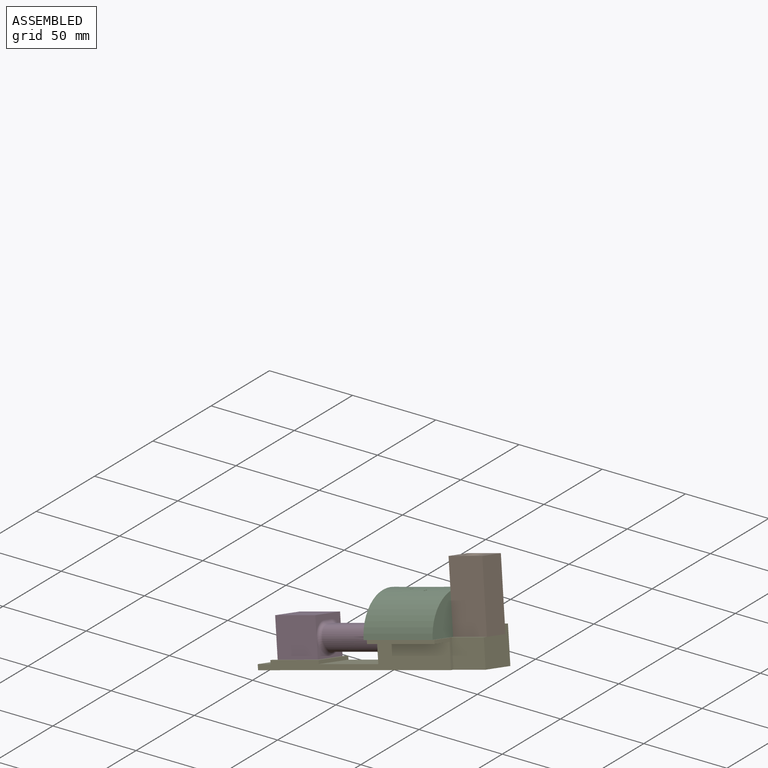
[diagram: assembled view]
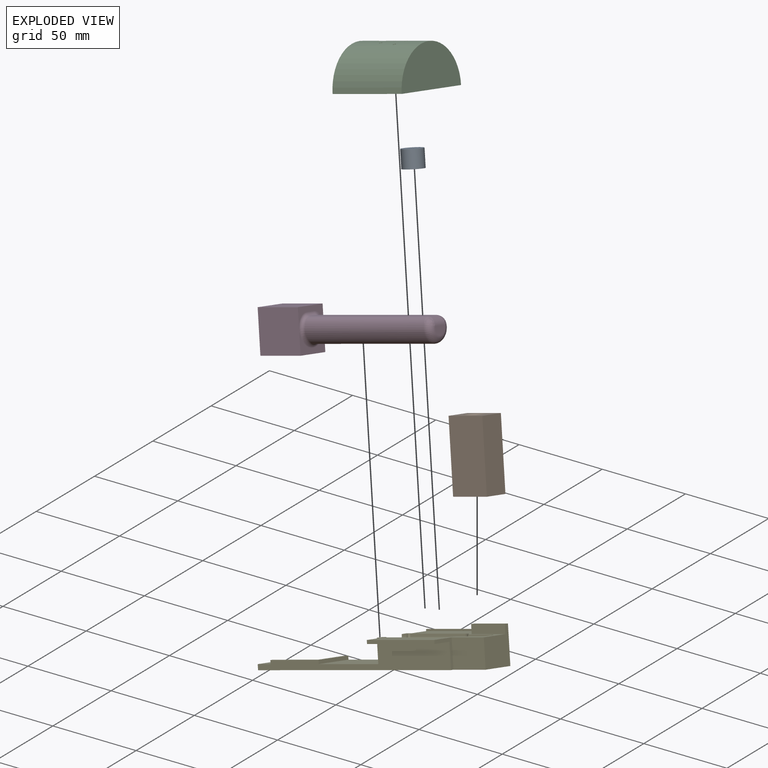
[diagram: exploded view]
GUIDED TOUR — MATED ASSEMBLY (Onshape document 5876027c799200176af7016b, AutoMate assembly 5876027c799200176af7016b_3df693e323b067947c87dbb7_29d887d885fc42acb8adf7d7_default)

This assembly has 5 components, labeled P0..P4 below (a component is one placed occurrence of a part; the same part can appear more than once), held together by 10 mates. A mate is a constraint between two components; its type names the relative motion it leaves free:
  CYLINDRICAL — leaves both rotation about and translation along the listed axis free,
  PLANAR — leaves sliding in the plane through the listed point (normal = the listed direction) and rotation about that normal free.
Axis/direction vectors are unit vectors and 'through' points are millimeter coordinates, both in the assembly's world frame.

MATES
  1. PLANAR "Planar 9": P1 <-> P2, direction (-0.966, 0.000, -0.259) through (118.35, -31.02, 31.34) mm
  2. PLANAR "Planar 1": P4 <-> P3, direction (-0.250, 0.259, 0.933) through (23.33, -40.90, -5.32) mm
  3. PLANAR "Planar 2": P3 <-> P4, direction (0.966, 0.000, 0.259) through (40.93, -41.63, -0.40) mm
  4. CYLINDRICAL "Cylindrical 1": P0 <-> P2, axis (0.250, -0.259, -0.933) through (101.58, -35.42, 39.85) mm
  5. PLANAR "Planar 4": P2 <-> P4, direction (0.250, -0.259, -0.933) through (97.59, -38.27, 27.78) mm
  6. PLANAR "Planar 3": P3 <-> P4, direction (-0.067, -0.966, 0.250) through (25.19, -48.19, 10.06) mm
  7. PLANAR "Planar 7": P0 <-> P3, direction (0.250, -0.259, -0.933) through (102.83, -36.72, 35.19) mm
  8. PLANAR "Planar 6": P2 <-> P4, direction (0.966, 0.000, 0.259) through (115.31, -35.63, 42.72) mm
  9. PLANAR "Planar 10": P1 <-> P4, direction (0.067, 0.966, -0.250) through (123.50, -25.85, 52.72) mm
  10. PLANAR "Planar 8": P1 <-> P4, direction (0.250, -0.259, -0.933) through (127.99, -38.27, 35.93) mm

ASSEMBLY ORDER
  1. P4 — the base component [order verified]
  2. P2 [order verified]
  3. P0 [order verified]
  4. P3 [order verified]
  5. P1 [order verified]
Order-tag legend:
  [order verified] — this step's position reverses a verified removal order: the component was checked to insert without passing through the ones already placed.

Of the 5 components, 1 carries the full construction recipe — the FeatureScript program that regenerates the part's solid from scratch; the rest are supplied as boundary geometry only.
Each toured component is shown spotlighted twice — in the assembled view, then in the exploded view, where a leader line traces a displaced component back to its assembled socket (saturated green if recipe-attached, orange if geometry-only; every other component desaturated gray) — followed by its recipe or geometry summary and the mates that hold it.
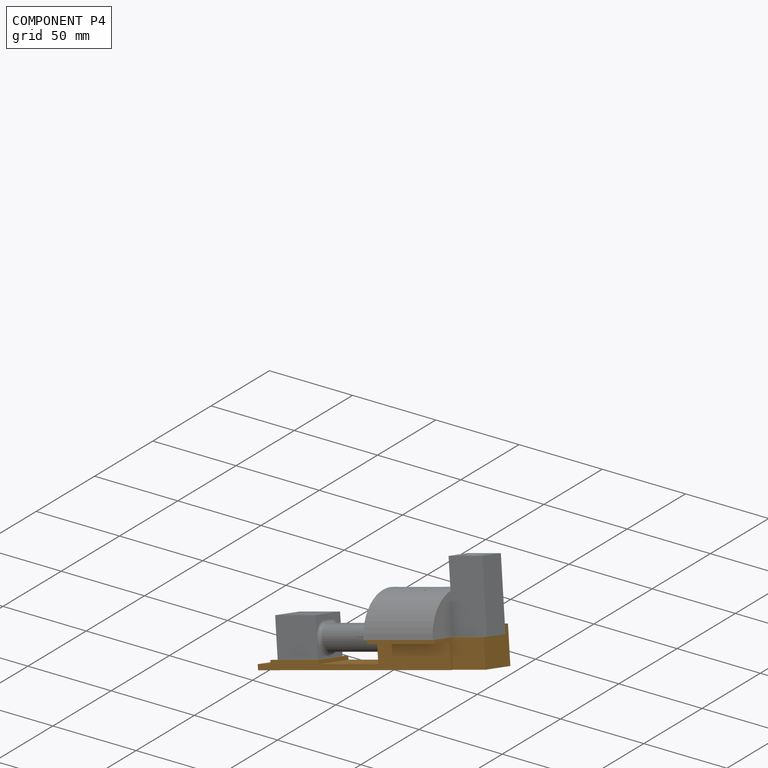
[diagram: component P4 — assembled]
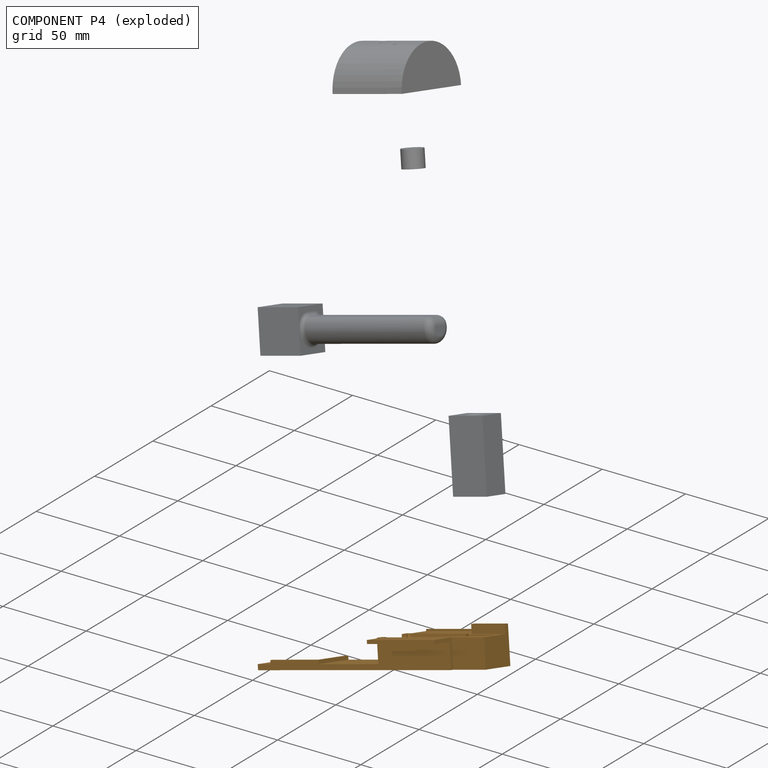
[diagram: component P4 — exploded]
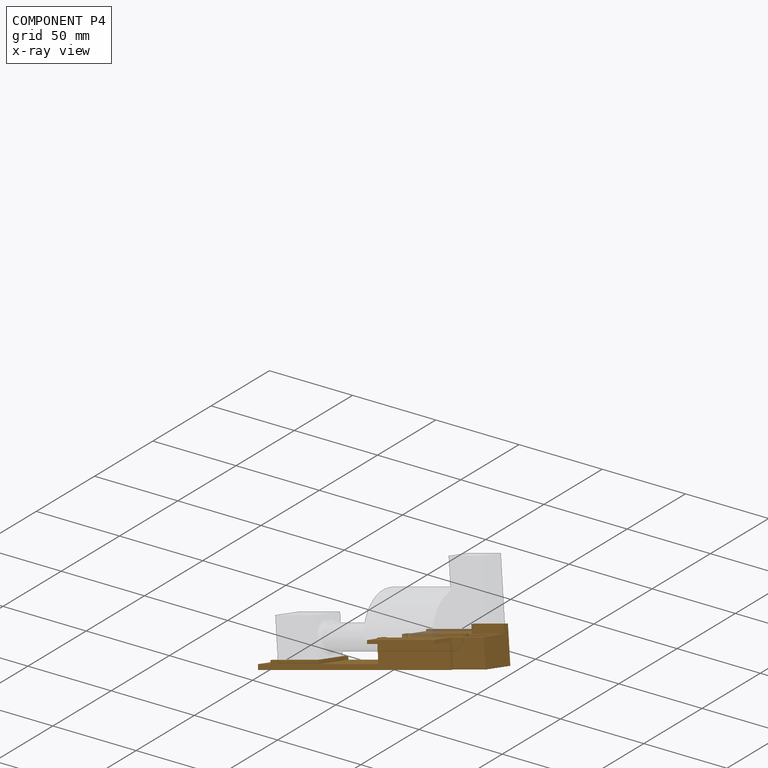
[diagram: component P4 — x-ray view]
COMPONENT P4 — geometry summary (no construction recipe available for this part):
  bounding box: 140.0 x 49.0 x 21.0 mm
  B-rep topology: 1 solid, 40 faces, 228 edges
  volume: 24572 mm^3 (17% of its bounding box)
Held by: PLANAR mate "Planar 1" to P3; PLANAR mate "Planar 2" to P3; PLANAR mate "Planar 4" to P2; PLANAR mate "Planar 3" to P3; PLANAR mate "Planar 6" to P2; PLANAR mate "Planar 10" to P1; PLANAR mate "Planar 8" to P1.
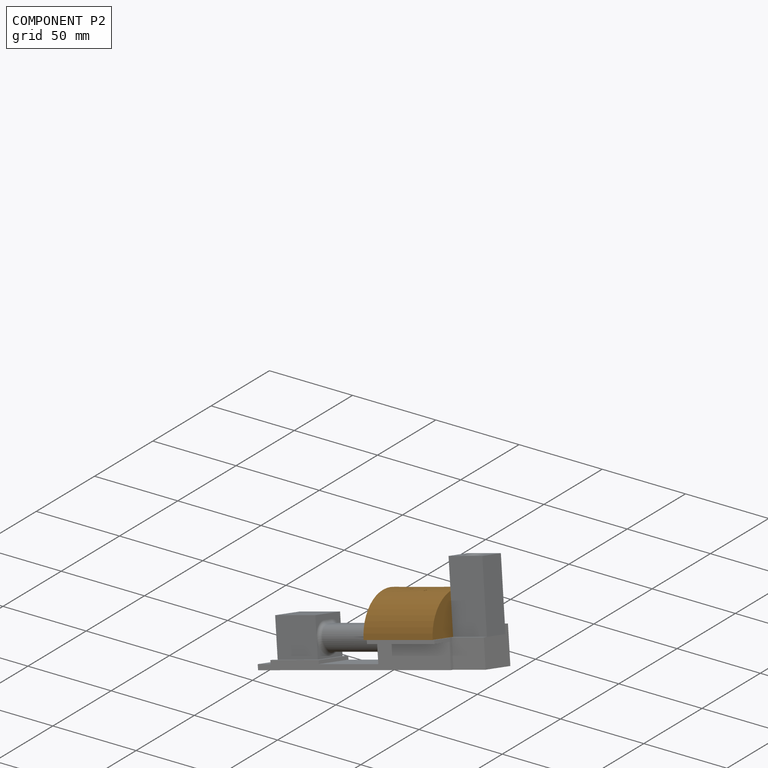
[diagram: component P2 — assembled]
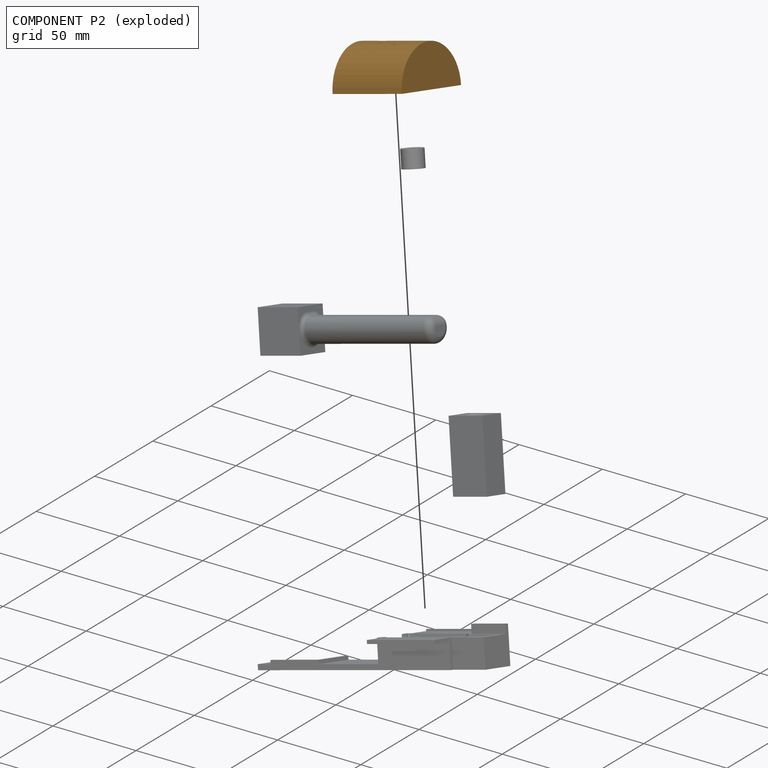
[diagram: component P2 — exploded]
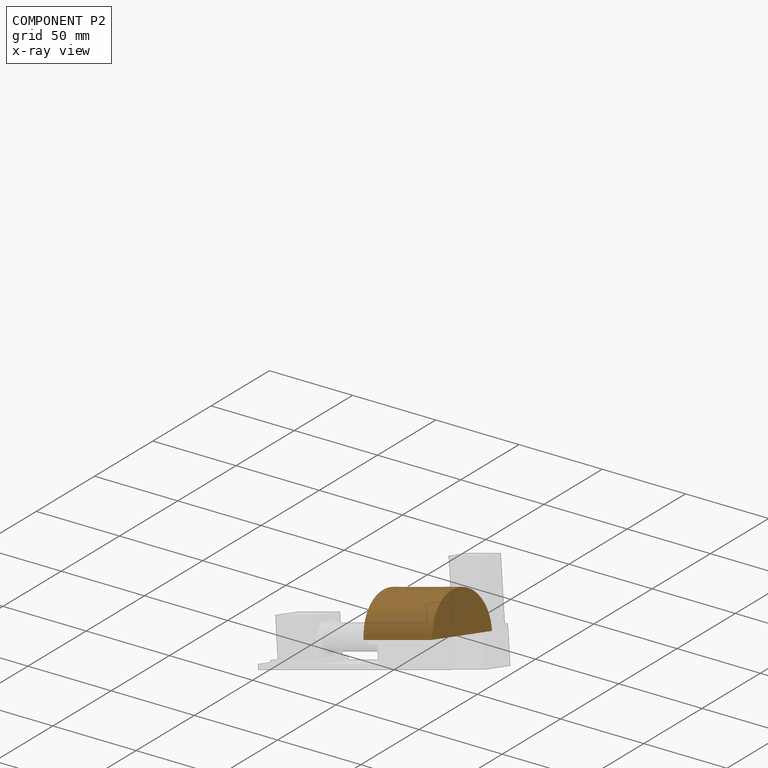
[diagram: component P2 — x-ray view]
COMPONENT P2 — geometry summary (no construction recipe available for this part):
  bounding box: 48.0 x 43.0 x 26.8 mm
  B-rep topology: 1 solid, 54 faces, 301 edges
  volume: 28462 mm^3 (51% of its bounding box)
  symmetry: mirror-symmetric across its z mid-plane
Held by: PLANAR mate "Planar 9" to P1; CYLINDRICAL mate "Cylindrical 1" to P0; PLANAR mate "Planar 4" to P4; PLANAR mate "Planar 6" to P4.
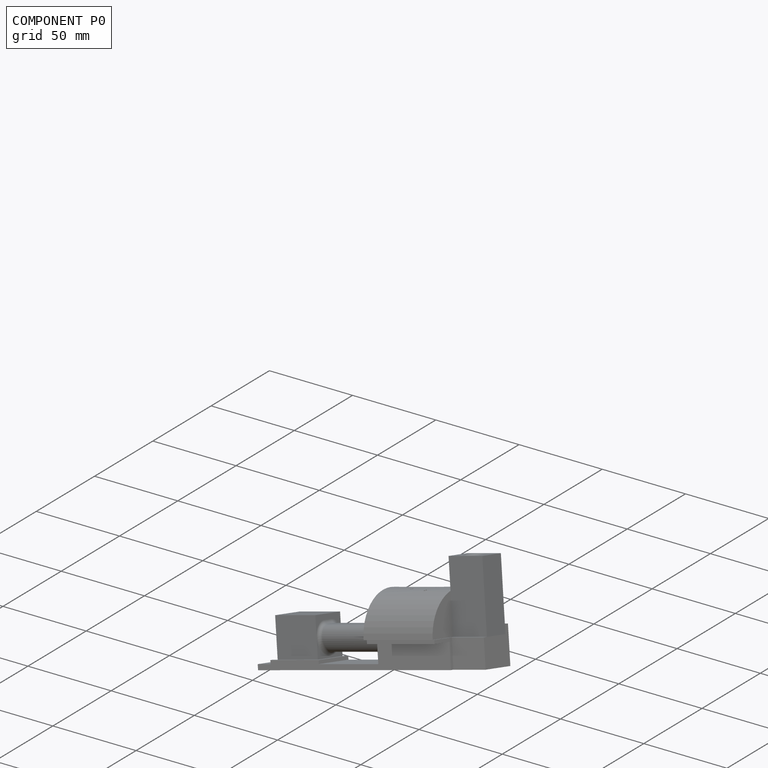
[diagram: component P0 — assembled]
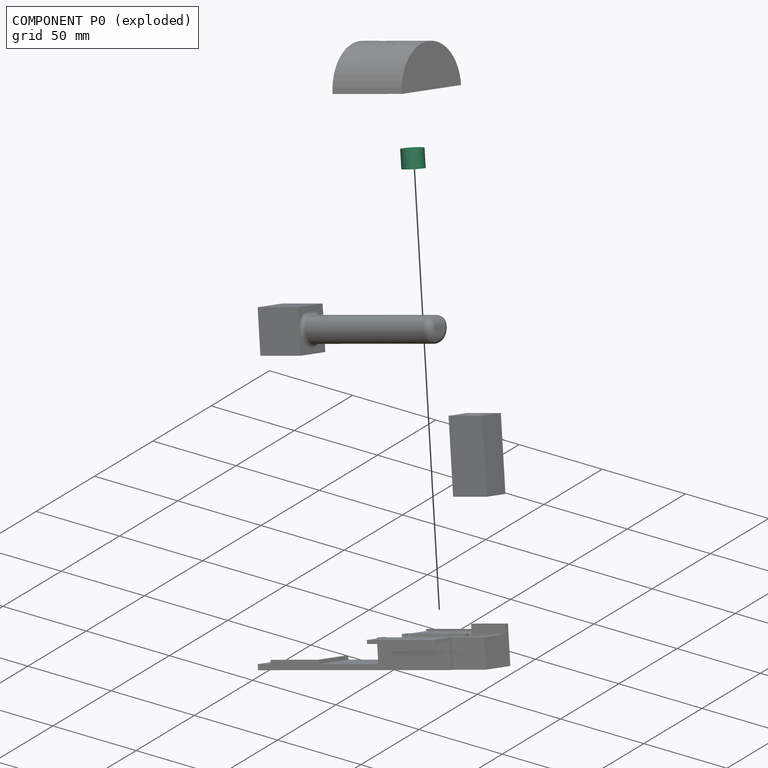
[diagram: component P0 — exploded]
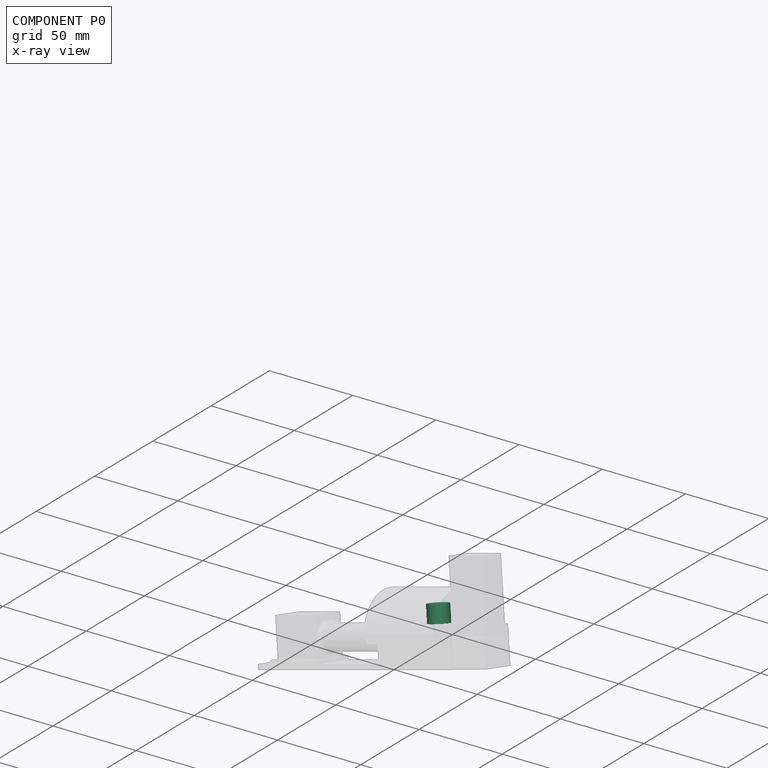
[diagram: component P0 — x-ray view]
COMPONENT P0 — recipe-attached (CADFS 00439272, mesh-verified: the recipe's output STEP matches this component's geometry to below the mesh-comparison resolution (tessellation chordal tolerance ~0.0295 mm)).
Held by: CYLINDRICAL mate "Cylindrical 1" to P2; PLANAR mate "Planar 7" to P3.
Construction recipe (FeatureScript — the CAD program that rebuilds this solid; sketch coordinates are in the units given by the * unit suffixes, e.g. mm):

FeatureScript 1540;
import(path : "onshape/std/geometry.fs", version : "1540.0");
import(path : "onshape/std/common.fs", version : "1540.0");
const mm = millimeter;
const VERTEX = EntityType.VERTEX;
const EDGE = EntityType.EDGE;
const FACE = EntityType.FACE;
const BODY = EntityType.BODY;
function v(x, y){return vector(x, y);}
function OD(order){return orderDisambiguation(order);}
function OSD(set){return originalSetDisambiguation(set);}
function TD(topology){return topologyDisambiguation(topology);}
function TDD(query){return trueDependencyDisambiguation(query);}
function sQuery(a, b, c) {return sketchEntityQuery(a, b, c);}

annotation { "Feature Type Name" : "Feature", "Feature Type Description" : "" }
export const myFeature = defineFeature(function(context is Context, id is Id, definition is map)
    precondition{}
    {
        {
            var Q0;
            Q0=qCreatedBy(makeId("Top.planeOp"),FACE);
            var sketch = newSketch(context, id + "F0", { "sketchPlane" : qUnion([Q0])});
            skCircle(sketch, "E0", {"center": v(0, -0.55) * mm, "radius": 6 * mm});
            skCircle(sketch, "E1", {"center": v(0, -0.55) * mm, "radius": 4.25 * mm});
            skPoint(sketch, "E2", {"position": v(0, 2.2) * mm});
            skSolve(sketch);
        }
        {
            var Q0;
            Q0=makeQuery(id+"F0.imprint","IMPRINT",FACE,{"disambiguationData":[TD([[makeQuery(id+"F0.imprint","IMPRINT",EDGE,{"derivedFrom":sQuery(id+"F0.wireOp",EDGE,"E0")}),1.0]])]});
            var Q1;
            Q1=makeQuery(id+"F0.imprint","IMPRINT",FACE,{"disambiguationData":[TD([[makeQuery(id+"F0.imprint","IMPRINT",EDGE,{"derivedFrom":sQuery(id+"F0.wireOp",EDGE,"E1")}),1.0]])]});
            extrude(context, id + "F1", {"entities" : qUnion([Q0, Q1]), "depth" : 10 * mm});
        }
        {
            var Q0;
            Q0=makeQuery(id+"F0.imprint","IMPRINT",FACE,{"disambiguationData":[TD([[makeQuery(id+"F0.imprint","IMPRINT",EDGE,{"derivedFrom":sQuery(id+"F0.wireOp",EDGE,"E1")}),1.0]])]});
            extrude(context, id + "F2", {"entities" : qUnion([Q0]), "operationType" : NewBodyOperationType.REMOVE, "depth" : 8 * mm});
        }
        {
            var Q0;
            Q0=sQuery(id+"F0.wireOp",VERTEX,"E0.center");
            var Q1;
            Q1=sQuery(id+"F0.wireOp",VERTEX,"E2");
            var Q2;
            Q2=makeQuery(id+"F1.opExtrude","SWEPT_BODY",BODY,{"disambiguationData":[OSD([sQuery(id+"F0.wireOp",EDGE,"E0")])]});
            hole(context, id + "F3", {"style" : HoleStyle.SIMPLE, "endStyle" : HoleEndStyle.THROUGH, "oppositeDirection" : true, "holeDiameter" : 1.5 * mm, "isTappedThrough" : true, "tappedDepth" : 12 * mm, "tapClearance" : 3, "locations" : qUnion([Q0, Q1]), "scope" : qUnion([Q2])});
        }
    });
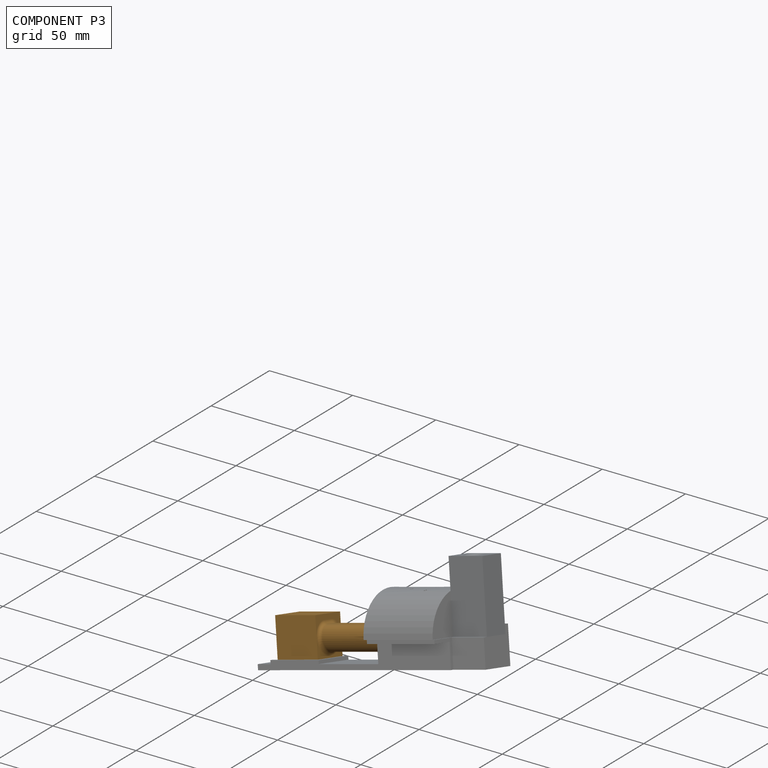
[diagram: component P3 — assembled]
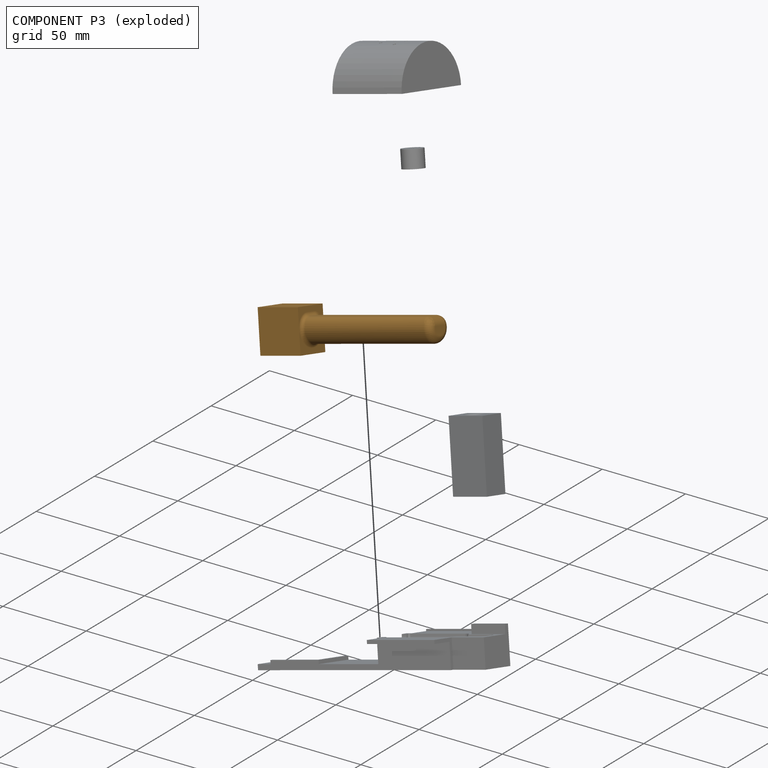
[diagram: component P3 — exploded]
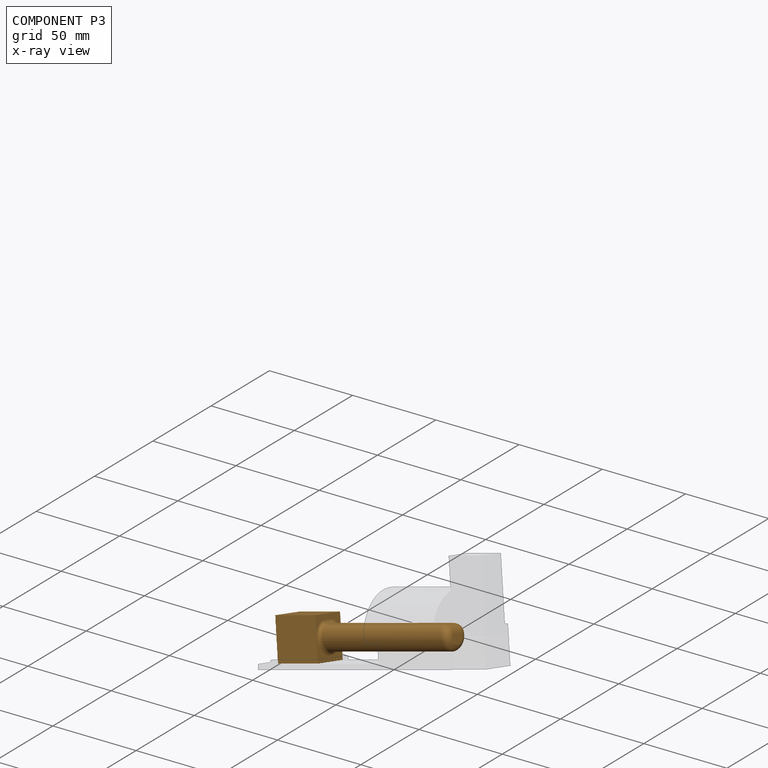
[diagram: component P3 — x-ray view]
COMPONENT P3 — geometry summary (no construction recipe available for this part):
  bounding box: 105.1 x 24.7 x 24.0 mm
  B-rep topology: 1 solid, 22 faces, 98 edges
  volume: 26599 mm^3 (43% of its bounding box)
  symmetry: mirror-symmetric across its y mid-plane
Held by: PLANAR mate "Planar 1" to P4; PLANAR mate "Planar 2" to P4; PLANAR mate "Planar 3" to P4; PLANAR mate "Planar 7" to P0.
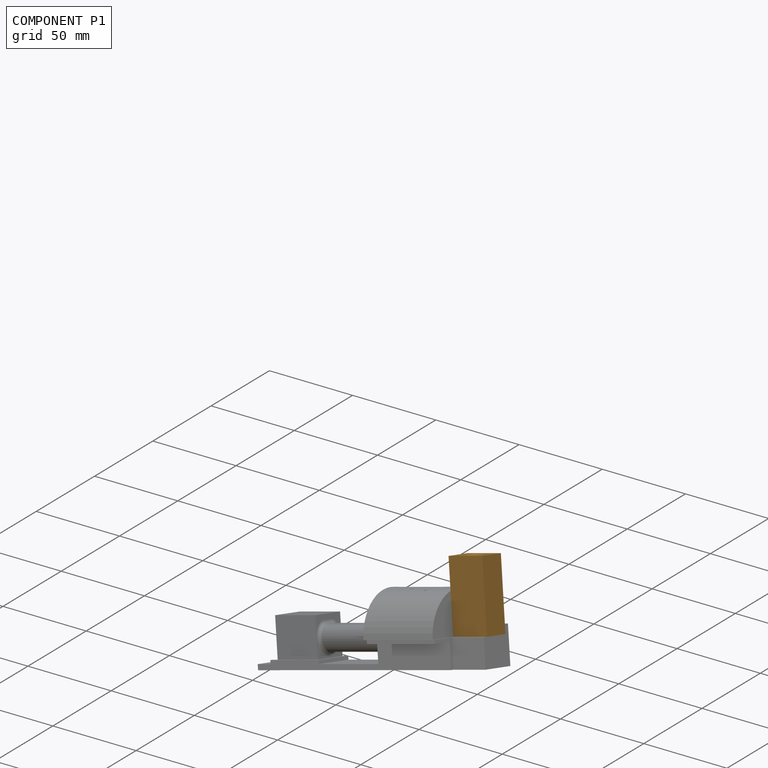
[diagram: component P1 — assembled]
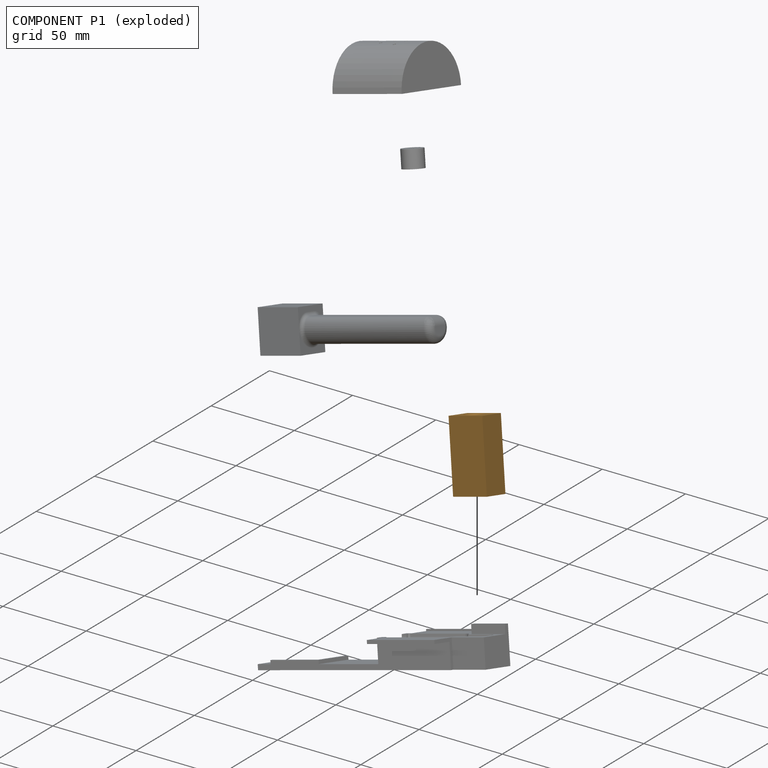
[diagram: component P1 — exploded]
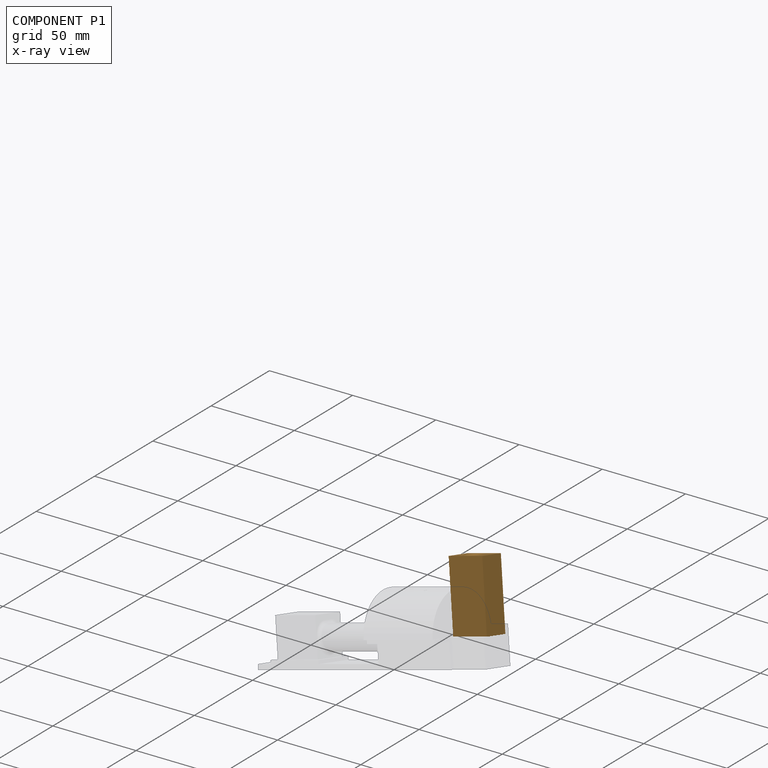
[diagram: component P1 — x-ray view]
COMPONENT P1 — geometry summary (no construction recipe available for this part):
  bounding box: 40.0 x 21.0 x 15.0 mm
  B-rep topology: 1 solid, 9 faces, 38 edges
  volume: 9444 mm^3 (75% of its bounding box)
  symmetry: 2-fold rotationally symmetric about the x axis; 2-fold rotationally symmetric about the y axis; 2-fold rotationally symmetric about the z axis; mirror-symmetric across its x mid-plane, y mid-plane, z mid-plane
Held by: PLANAR mate "Planar 9" to P2; PLANAR mate "Planar 10" to P4; PLANAR mate "Planar 8" to P4.
PROVENANCE & LICENSES
Assembly (occurrences, transforms, mates, per-part STEP geometry): AutoMate dataset, Zenodo record 7776208, CC0.
Construction recipes: CADFS (HuggingFace VladPyatov/CADFS, CC-BY-4.0, layered over the ABC dataset), FeatureScript reconstruction programs keyed by ABC model id.
Join: ABC meta listings map ABC model id -> Onshape documentId; within a shared document, parts are matched by geometric signature (bounding-box dims + volume at 0.1% relative tolerance, exact B-rep face/solid counts).
Verification: 1 of this assembly's 5 components carries a recipe attachment, and every attachment is mesh-verified: the CADFS STEP and the AutoMate member STEP were compared as meshes in their shared local frame (symmetric sampled-point-to-mesh distance); worst across the 1 attachment: below the mesh-comparison resolution (tessellation chordal tolerance ~0.0295 mm) on a 20 mm part.
Renders: orthographic iso camera (az 35 / el 25); the floor grid conveys scale (grid pitch printed in each image; no ruler). In the exploded view each component is displaced by its stored offset vector: the offsets alone carry the explosion direction (mate normal/axis signs are not orientation cues and do not encode it), and separation distances are assigned per mate-chain, not proportionally to assembly-order depth.
